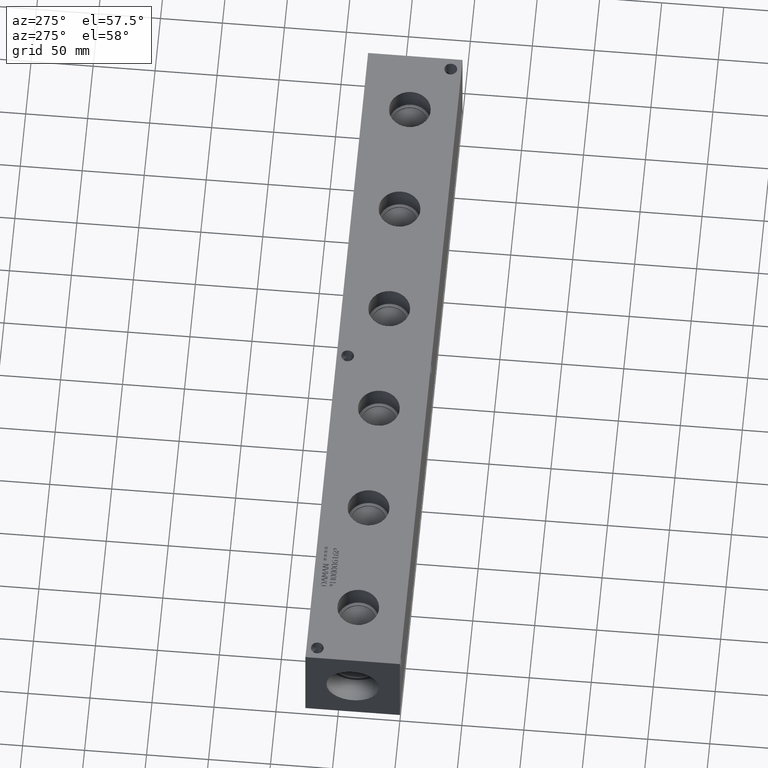
[diagram: clean part render]
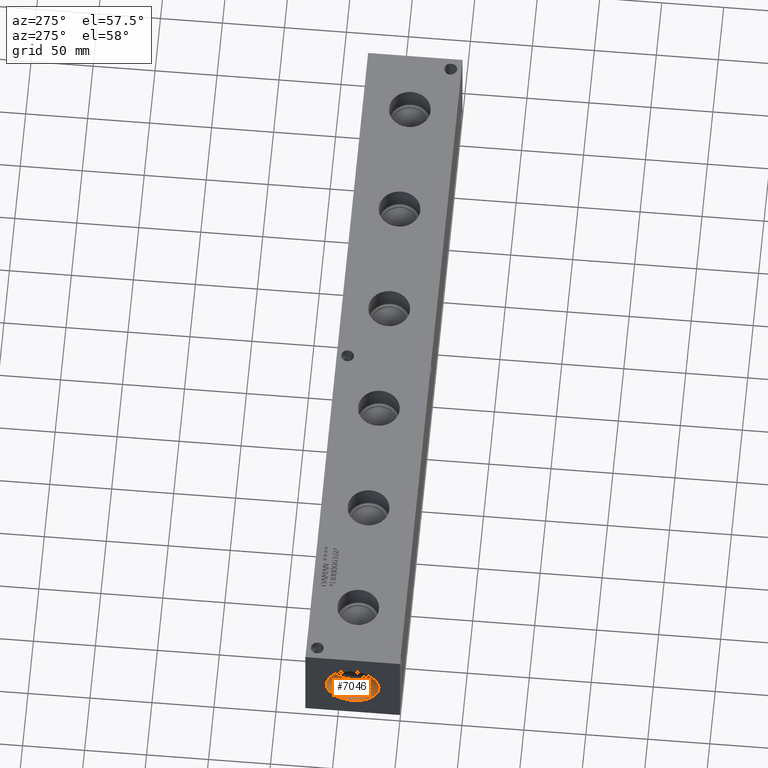
[diagram: same view with one face highlighted and labeled with its STEP entity id]
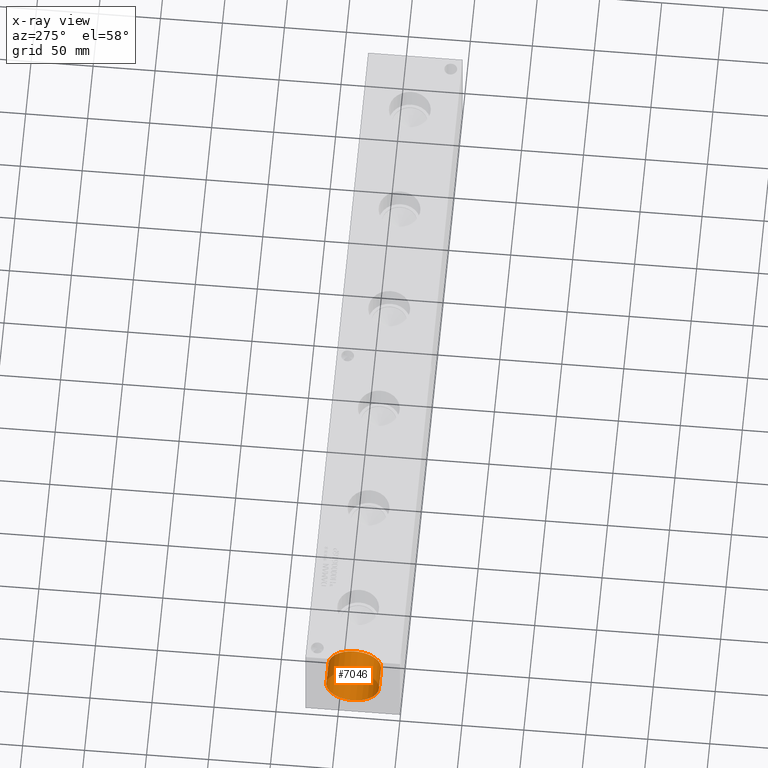
[diagram: x-ray of the same camera — body ghosted, the highlighted face saturated]
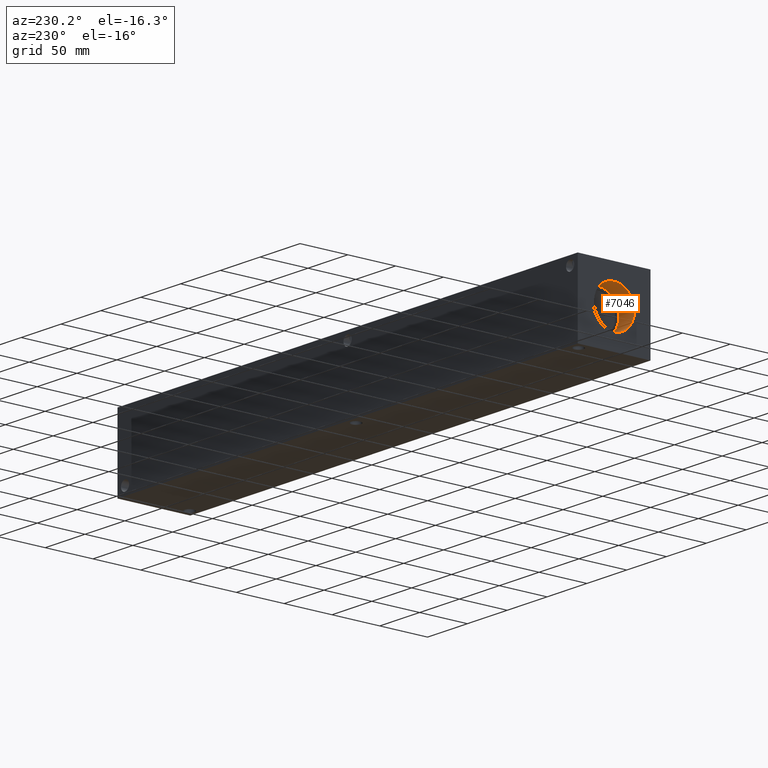
[diagram: same view with one face highlighted and labeled with its STEP entity id]
A machine part, auxiliary view. The second image highlights one B-rep face of the part: STEP entity #7046.
The next image is the same camera in x-ray: the body ghosted, the highlighted face saturated — about 0% of this face is hidden behind the body in this view.
A second angle (auxiliary view) of the same face is appended — the face is thin or edge-on in the first view.
In plain terms, the highlighted cylindrical surface (bore or boss wall) has radius 21.2344 mm, axis along (-1, 0, 0).
Its self-contained STEP definition (entity closure, byte-faithful):
#60=CYLINDRICAL_SURFACE('',#7398,21.2344);
#131=CIRCLE('',#7395,21.2344);
#132=CIRCLE('',#7396,21.2344);
#134=CIRCLE('',#7399,21.2344);
#135=CIRCLE('',#7400,21.2344);
#760=FACE_OUTER_BOUND('',#1163,.T.);
#1163=EDGE_LOOP('',(#6246,#6247,#6248,#6249,#6250,#6251));
#1848=LINE('',#12062,#2524);
#2524=VECTOR('',#8742,21.2344);
#3383=VERTEX_POINT('',#12051);
#3384=VERTEX_POINT('',#12052);
#3386=VERTEX_POINT('',#12058);
#3387=VERTEX_POINT('',#12059);
#4345=EDGE_CURVE('',#3383,#3384,#131,.T.);
#4346=EDGE_CURVE('',#3384,#3383,#132,.T.);
#4348=EDGE_CURVE('',#3386,#3387,#134,.T.);
#4349=EDGE_CURVE('',#3387,#3386,#135,.T.);
#4350=EDGE_CURVE('',#3387,#3384,#1848,.T.);
#6246=ORIENTED_EDGE('',*,*,#4348,.F.);
#6247=ORIENTED_EDGE('',*,*,#4349,.F.);
#6248=ORIENTED_EDGE('',*,*,#4350,.T.);
#6249=ORIENTED_EDGE('',*,*,#4345,.F.);
#6250=ORIENTED_EDGE('',*,*,#4346,.F.);
#6251=ORIENTED_EDGE('',*,*,#4350,.F.);
#7046=ADVANCED_FACE('',(#760),#60,.F.);
#7395=AXIS2_PLACEMENT_3D('',#12053,#8730,#8731);
#7396=AXIS2_PLACEMENT_3D('',#12054,#8732,#8733);
#7398=AXIS2_PLACEMENT_3D('',#12057,#8736,#8737);
#7399=AXIS2_PLACEMENT_3D('',#12060,#8738,#8739);
#7400=AXIS2_PLACEMENT_3D('',#12061,#8740,#8741);
#8730=DIRECTION('center_axis',(-1.,0.,0.));
#8731=DIRECTION('ref_axis',(0.,1.,0.));
#8732=DIRECTION('center_axis',(-1.,0.,0.));
#8733=DIRECTION('ref_axis',(0.,1.,0.));
#8736=DIRECTION('center_axis',(-1.,0.,0.));
#8737=DIRECTION('ref_axis',(0.,1.,0.));
#8738=DIRECTION('center_axis',(1.,0.,0.));
#8739=DIRECTION('ref_axis',(0.,1.,0.));
#8740=DIRECTION('center_axis',(1.,0.,0.));
#8741=DIRECTION('ref_axis',(0.,1.,0.));
#8742=DIRECTION('',(1.,0.,0.));
#12051=CARTESIAN_POINT('',(19.5072,59.3344,38.1));
#12052=CARTESIAN_POINT('',(19.5072,16.8656,38.1));
#12053=CARTESIAN_POINT('Origin',(19.5072,38.1,38.1));
#12054=CARTESIAN_POINT('Origin',(19.5072,38.1,38.1));
#12057=CARTESIAN_POINT('Origin',(9.7536,38.1,38.1));
#12058=CARTESIAN_POINT('',(0.,59.3344,38.1));
#12059=CARTESIAN_POINT('',(0.,16.8656,38.1));
#12060=CARTESIAN_POINT('Origin',(0.,38.1,38.1));
#12061=CARTESIAN_POINT('Origin',(0.,38.1,38.1));
#12062=CARTESIAN_POINT('',(9.7536,16.8656,38.1));